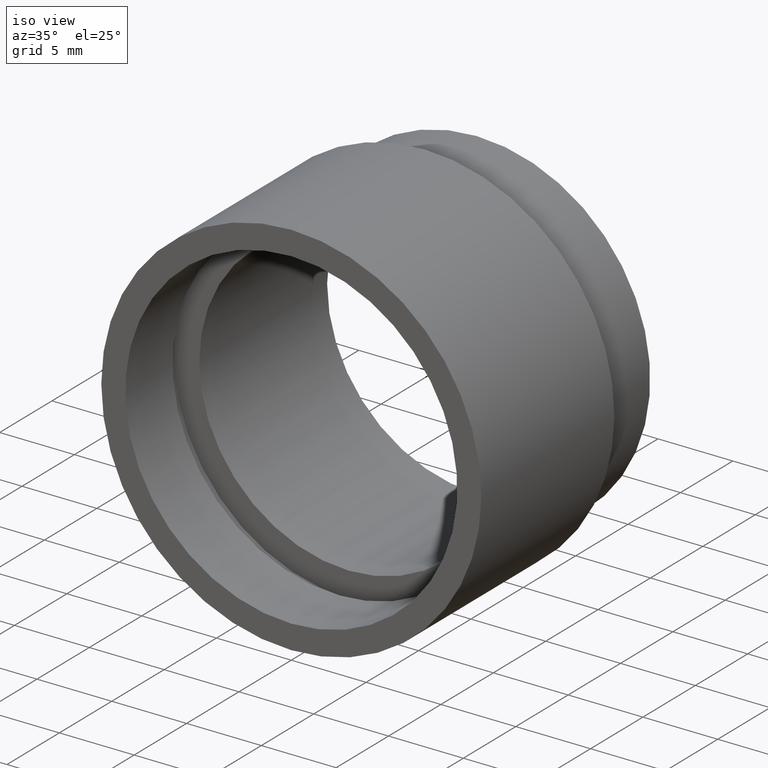
[diagram: clean part render]
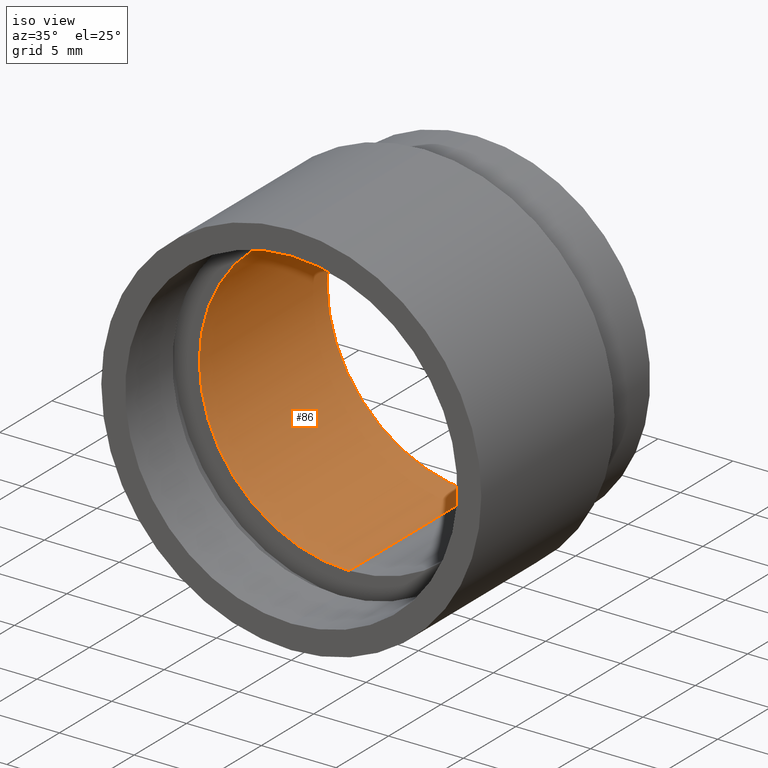
[diagram: same view with one face highlighted and labeled with its STEP entity id]
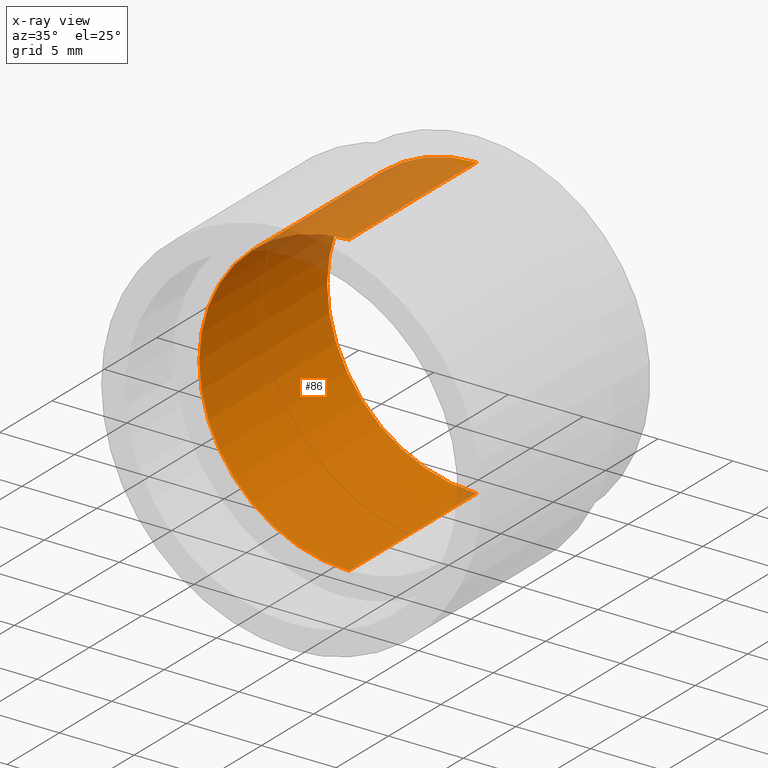
[diagram: x-ray of the same camera — body ghosted, the highlighted face saturated]
A machine part, iso view. The second image highlights one B-rep face of the part: STEP entity #86.
The next image is the same camera in x-ray: the body ghosted, the highlighted face saturated — about 15% of this face is hidden behind the body in this view.
In plain terms, the highlighted cylindrical surface (partial cylindrical patch) has radius 10 mm, axis along (-0, 1, -0).
Its self-contained STEP definition (entity closure, byte-faithful):
#73 = VERTEX_POINT ( 'NONE', #329 ) ;
#86 = ADVANCED_FACE ( 'NONE', ( #519 ), #423, .F. ) ;
#88 = DIRECTION ( 'NONE',  ( -0.0000000000000000000, 1.000000000000000000, -0.0000000000000000000 ) ) ;
#100 = AXIS2_PLACEMENT_3D ( 'NONE', #419, #379, #518 ) ;
#115 = CIRCLE ( 'NONE', #100, 10.00000000000002000 ) ;
#120 = VECTOR ( 'NONE', #88, 1000.000000000000000 ) ;
#162 = CARTESIAN_POINT ( 'NONE',  ( 1.224646799147355400E-015, 161.3761669434274500, -10.00000000000002000 ) ) ;
#167 = DIRECTION ( 'NONE',  ( -0.0000000000000000000, 1.000000000000000000, -0.0000000000000000000 ) ) ;
#176 = EDGE_CURVE ( 'NONE', #412, #238, #115, .T. ) ;
#177 = ORIENTED_EDGE ( 'NONE', *, *, #377, .T. ) ;
#183 = DIRECTION ( 'NONE',  ( -0.0000000000000000000, 1.000000000000000000, -0.0000000000000000000 ) ) ;
#191 = LINE ( 'NONE', #612, #120 ) ;
#204 = CIRCLE ( 'NONE', #239, 10.00000000000002000 ) ;
#205 = DIRECTION ( 'NONE',  ( -0.0000000000000000000, 1.000000000000000000, -0.0000000000000000000 ) ) ;
#212 = EDGE_CURVE ( 'NONE', #73, #238, #191, .T. ) ;
#220 = ORIENTED_EDGE ( 'NONE', *, *, #565, .F. ) ;
#228 = CARTESIAN_POINT ( 'NONE',  ( 0.0000000000000000000, 161.3761669434274500, 0.0000000000000000000 ) ) ;
#238 = VERTEX_POINT ( 'NONE', #573 ) ;
#239 = AXIS2_PLACEMENT_3D ( 'NONE', #297, #205, #529 ) ;
#291 = VERTEX_POINT ( 'NONE', #528 ) ;
#297 = CARTESIAN_POINT ( 'NONE',  ( 0.0000000000000000000, 5.499999999999976900, 0.0000000000000000000 ) ) ;
#307 = EDGE_LOOP ( 'NONE', ( #220, #177, #427, #582 ) ) ;
#329 = CARTESIAN_POINT ( 'NONE',  ( 0.0000000000000000000, 5.499999999999976900, 10.00000000000002000 ) ) ;
#355 = LINE ( 'NONE', #162, #478 ) ;
#377 = EDGE_CURVE ( 'NONE', #291, #412, #355, .T. ) ;
#379 = DIRECTION ( 'NONE',  ( -0.0000000000000000000, 1.000000000000000000, -0.0000000000000000000 ) ) ;
#404 = CARTESIAN_POINT ( 'NONE',  ( 1.224646799147355400E-015, 17.69999999999999200, -10.00000000000002000 ) ) ;
#412 = VERTEX_POINT ( 'NONE', #404 ) ;
#419 = CARTESIAN_POINT ( 'NONE',  ( 0.0000000000000000000, 17.69999999999999200, 0.0000000000000000000 ) ) ;
#423 = CYLINDRICAL_SURFACE ( 'NONE', #541, 10.00000000000002000 ) ;
#427 = ORIENTED_EDGE ( 'NONE', *, *, #176, .T. ) ;
#462 = DIRECTION ( 'NONE',  ( 0.0000000000000000000, 0.0000000000000000000, 1.000000000000000000 ) ) ;
#478 = VECTOR ( 'NONE', #167, 1000.000000000000000 ) ;
#518 = DIRECTION ( 'NONE',  ( 0.0000000000000000000, 0.0000000000000000000, 1.000000000000000000 ) ) ;
#519 = FACE_OUTER_BOUND ( 'NONE', #307, .T. ) ;
#528 = CARTESIAN_POINT ( 'NONE',  ( 1.224646799147355400E-015, 5.499999999999976900, -10.00000000000002000 ) ) ;
#529 = DIRECTION ( 'NONE',  ( 0.0000000000000000000, 0.0000000000000000000, 1.000000000000000000 ) ) ;
#541 = AXIS2_PLACEMENT_3D ( 'NONE', #228, #183, #462 ) ;
#565 = EDGE_CURVE ( 'NONE', #291, #73, #204, .T. ) ;
#573 = CARTESIAN_POINT ( 'NONE',  ( 0.0000000000000000000, 17.69999999999999200, 10.00000000000002000 ) ) ;
#582 = ORIENTED_EDGE ( 'NONE', *, *, #212, .F. ) ;
#612 = CARTESIAN_POINT ( 'NONE',  ( 0.0000000000000000000, 161.3761669434274500, 10.00000000000002000 ) ) ;